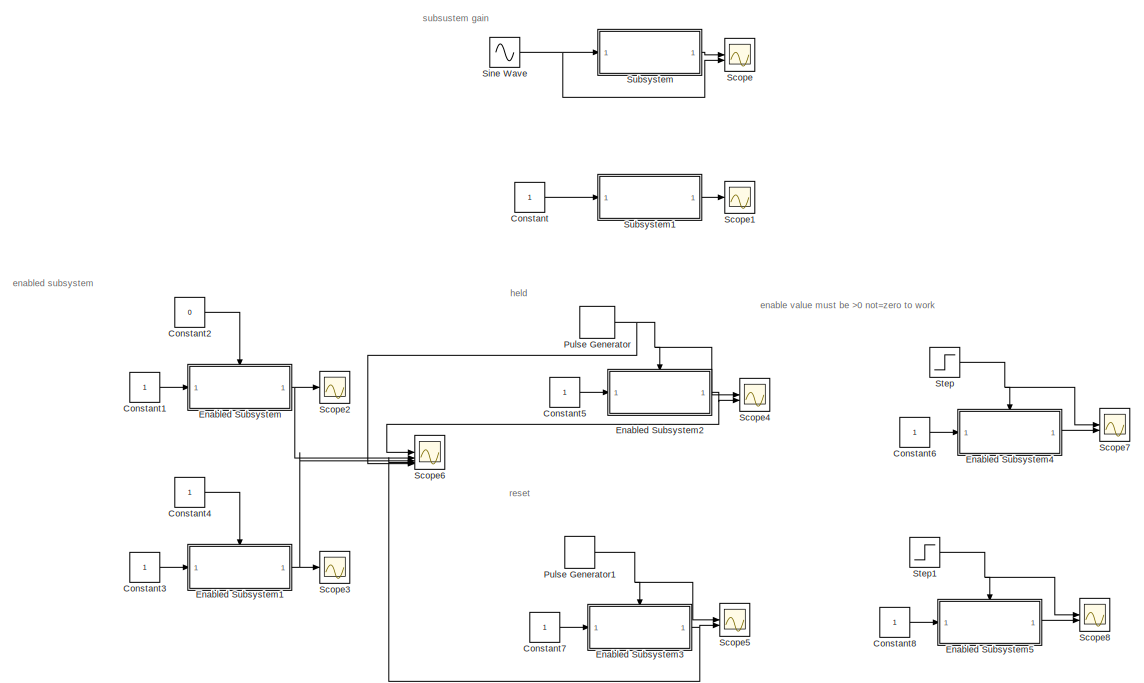
[diagram: root canvas - part 1/2, full width, top band]
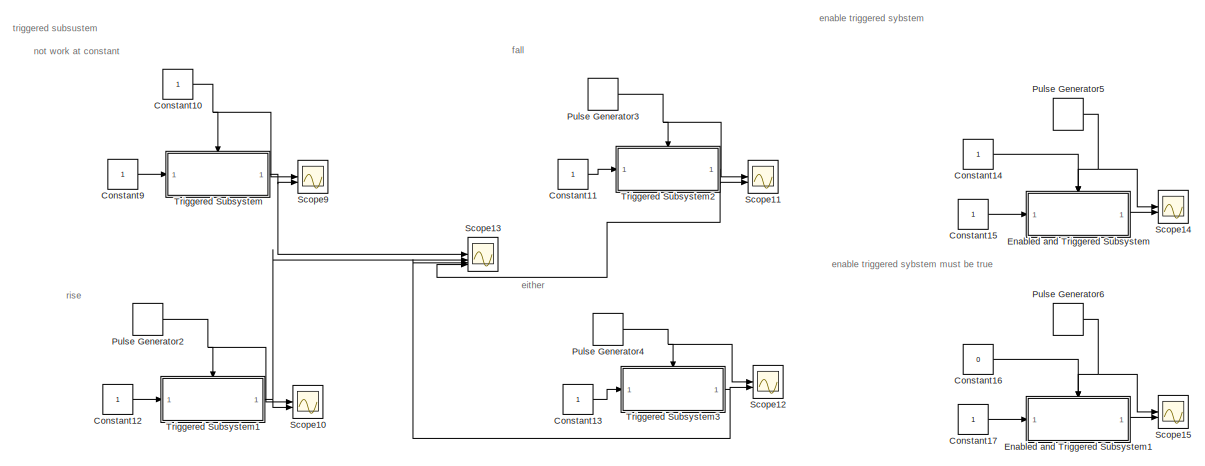
[diagram: root canvas - part 2/2, full width, bottom band]
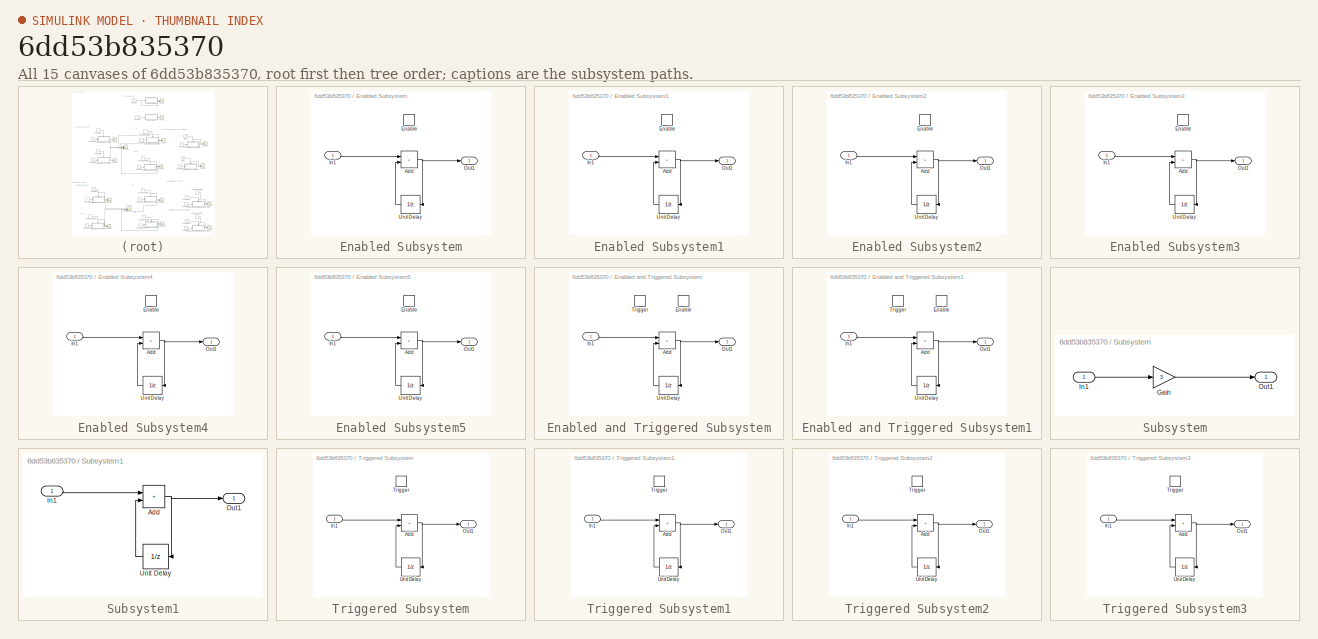
[diagram: thumbnail index - all 15 canvases of the model, root first then tree order]
MODEL slx_6dd53b835370
KIND model
CONFIG AbsTol = auto
CONFIG EnableMultiTasking = off
CONFIG FixedStep = 1e-3
CONFIG MaxStep = auto
CONFIG MinStep = auto
CONFIG RelTol = 1e-3
CONFIG SampleTimeConstraint = Unconstrained
CONFIG SolverName = FixedStepAuto
CONFIG StartTime = 0.0
CONFIG StopTime = 10.0
BLOCK [Constant] Constant
BLOCK [Constant] Constant1
BLOCK [Constant] Constant10
BLOCK [Constant] Constant11
BLOCK [Constant] Constant12
BLOCK [Constant] Constant13
BLOCK [Constant] Constant14
BLOCK [Constant] Constant15
BLOCK [Constant] Constant16
  Value = 0
BLOCK [Constant] Constant17
BLOCK [Constant] Constant2
  Value = 0
BLOCK [Constant] Constant3
BLOCK [Constant] Constant4
BLOCK [Constant] Constant5
BLOCK [Constant] Constant6
BLOCK [Constant] Constant7
BLOCK [Constant] Constant8
BLOCK [Constant] Constant9
BLOCK [SubSystem] Enabled Subsystem
  TreatAsAtomicUnit = on
BLOCK [Sum] Enabled Subsystem/Add
  IconShape = rectangular
BLOCK [EnablePort] Enabled Subsystem/Enable
BLOCK [Inport] Enabled Subsystem/In1
BLOCK [Outport] Enabled Subsystem/Out1
BLOCK [UnitDelay] Enabled Subsystem/Unit Delay
  HasFrameUpgradeWarning = on
  NameLocation = top
  SampleTime = -1
BLOCK [SubSystem] Enabled Subsystem1
  TreatAsAtomicUnit = on
BLOCK [Sum] Enabled Subsystem1/Add
  IconShape = rectangular
BLOCK [EnablePort] Enabled Subsystem1/Enable
BLOCK [Inport] Enabled Subsystem1/In1
BLOCK [Outport] Enabled Subsystem1/Out1
BLOCK [UnitDelay] Enabled Subsystem1/Unit Delay
  HasFrameUpgradeWarning = on
  NameLocation = top
  SampleTime = -1
BLOCK [SubSystem] Enabled Subsystem2
  TreatAsAtomicUnit = on
BLOCK [Sum] Enabled Subsystem2/Add
  IconShape = rectangular
BLOCK [EnablePort] Enabled Subsystem2/Enable
BLOCK [Inport] Enabled Subsystem2/In1
BLOCK [Outport] Enabled Subsystem2/Out1
BLOCK [UnitDelay] Enabled Subsystem2/Unit Delay
  HasFrameUpgradeWarning = on
  NameLocation = top
  SampleTime = -1
BLOCK [SubSystem] Enabled Subsystem3
  TreatAsAtomicUnit = on
BLOCK [Sum] Enabled Subsystem3/Add
  IconShape = rectangular
BLOCK [EnablePort] Enabled Subsystem3/Enable
  StatesWhenEnabling = reset
BLOCK [Inport] Enabled Subsystem3/In1
BLOCK [Outport] Enabled Subsystem3/Out1
BLOCK [UnitDelay] Enabled Subsystem3/Unit Delay
  HasFrameUpgradeWarning = on
  NameLocation = top
  SampleTime = -1
BLOCK [SubSystem] Enabled Subsystem4
  TreatAsAtomicUnit = on
BLOCK [Sum] Enabled Subsystem4/Add
  IconShape = rectangular
BLOCK [EnablePort] Enabled Subsystem4/Enable
BLOCK [Inport] Enabled Subsystem4/In1
BLOCK [Outport] Enabled Subsystem4/Out1
BLOCK [UnitDelay] Enabled Subsystem4/Unit Delay
  HasFrameUpgradeWarning = on
  NameLocation = top
  SampleTime = -1
BLOCK [SubSystem] Enabled Subsystem5
  TreatAsAtomicUnit = on
BLOCK [Sum] Enabled Subsystem5/Add
  IconShape = rectangular
BLOCK [EnablePort] Enabled Subsystem5/Enable
BLOCK [Inport] Enabled Subsystem5/In1
BLOCK [Outport] Enabled Subsystem5/Out1
BLOCK [UnitDelay] Enabled Subsystem5/Unit Delay
  HasFrameUpgradeWarning = on
  NameLocation = top
  SampleTime = -1
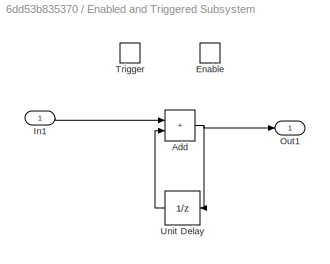
BLOCK [SubSystem] Enabled and Triggered Subsystem
  TreatAsAtomicUnit = on
BLOCK [Sum] Enabled and Triggered Subsystem/Add
  IconShape = rectangular
BLOCK [EnablePort] Enabled and Triggered Subsystem/Enable
BLOCK [Inport] Enabled and Triggered Subsystem/In1
BLOCK [Outport] Enabled and Triggered Subsystem/Out1
BLOCK [TriggerPort] Enabled and Triggered Subsystem/Trigger
  StatesWhenEnabling = held
  VariantControl = (inherit)
BLOCK [UnitDelay] Enabled and Triggered Subsystem/Unit Delay
  HasFrameUpgradeWarning = on
  NameLocation = top
  SampleTime = -1
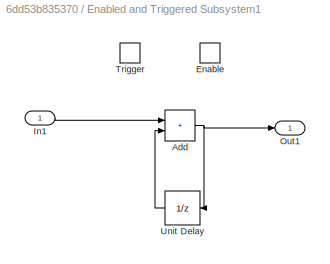
BLOCK [SubSystem] Enabled and Triggered Subsystem1
  TreatAsAtomicUnit = on
BLOCK [Sum] Enabled and Triggered Subsystem1/Add
  IconShape = rectangular
BLOCK [EnablePort] Enabled and Triggered Subsystem1/Enable
BLOCK [Inport] Enabled and Triggered Subsystem1/In1
BLOCK [Outport] Enabled and Triggered Subsystem1/Out1
BLOCK [TriggerPort] Enabled and Triggered Subsystem1/Trigger
  StatesWhenEnabling = held
  VariantControl = (inherit)
BLOCK [UnitDelay] Enabled and Triggered Subsystem1/Unit Delay
  HasFrameUpgradeWarning = on
  NameLocation = top
  SampleTime = -1
BLOCK [DiscretePulseGenerator] Pulse Generator
  PulseType = Time based
  PulseWidth = 50
BLOCK [DiscretePulseGenerator] Pulse Generator1
  PulseType = Time based
  PulseWidth = 50
BLOCK [DiscretePulseGenerator] Pulse Generator2
  PulseType = Time based
  PulseWidth = 5
BLOCK [DiscretePulseGenerator] Pulse Generator3
  PulseType = Time based
  PulseWidth = 5
BLOCK [DiscretePulseGenerator] Pulse Generator4
  PulseType = Time based
  PulseWidth = 5
BLOCK [DiscretePulseGenerator] Pulse Generator5
  PulseType = Time based
  PulseWidth = 5
BLOCK [DiscretePulseGenerator] Pulse Generator6
  PulseType = Time based
  PulseWidth = 5
BLOCK [Scope] Scope
  Floating = off
  NumInputPorts = 2
  ScopeSpecificationString = Simulink.scopes.TimeScopeBlockCfg('CurrentConfiguration', extmgr.ConfigurationSet(extmgr.Configuration('Core','General UI',true),extmgr.Configuration('Core','Source UI',true),extmgr.Configuration('Sources','WiredSimulink',true),extmgr.Configuration('Visuals','Time Domain',true,'SerializedDisplays',{struct('MinYLimReal','-3.75','MaxYLimReal','3.75','YLabelReal','','MinYLimMag','0.00000','MaxYLimMag...<+1323ch>
BLOCK [Scope] Scope1
  Floating = off
  NumInputPorts = 1
  ScopeSpecificationString = Simulink.scopes.TimeScopeBlockCfg('CurrentConfiguration', extmgr.ConfigurationSet(extmgr.Configuration('Core','General UI',true),extmgr.Configuration('Core','Source UI',true),extmgr.Configuration('Sources','WiredSimulink',true,'DataLoggingVariableName','ScopeData1'),extmgr.Configuration('Visuals','Time Domain',true,'SerializedDisplays',{struct('MinYLimReal','-1249.00000','MaxYLimReal','11251.00000...<+1395ch>
BLOCK [Scope] Scope10
  Floating = off
  NumInputPorts = 2
  ScopeSpecificationString = Simulink.scopes.TimeScopeBlockCfg('CurrentConfiguration', extmgr.ConfigurationSet(extmgr.Configuration('Core','General UI',true),extmgr.Configuration('Core','Source UI',true),extmgr.Configuration('Sources','WiredSimulink',true,'DataLoggingVariableName','ScopeData10'),extmgr.Configuration('Visuals','Time Domain',true,'SerializedDisplays',{struct('MinYLimReal','-0.125','MaxYLimReal','1.125','YLabelR...<+2021ch>
BLOCK [Scope] Scope11
  Floating = off
  NumInputPorts = 2
  ScopeSpecificationString = Simulink.scopes.TimeScopeBlockCfg('CurrentConfiguration', extmgr.ConfigurationSet(extmgr.Configuration('Core','General UI',true),extmgr.Configuration('Core','Source UI',true),extmgr.Configuration('Sources','WiredSimulink',true,'DataLoggingVariableName','ScopeData11'),extmgr.Configuration('Visuals','Time Domain',true,'SerializedDisplays',{struct('MinYLimReal','-0.125','MaxYLimReal','1.125','YLabelR...<+2021ch>
BLOCK [Scope] Scope12
  Floating = off
  NumInputPorts = 2
  ScopeSpecificationString = Simulink.scopes.TimeScopeBlockCfg('CurrentConfiguration', extmgr.ConfigurationSet(extmgr.Configuration('Core','General UI',true),extmgr.Configuration('Core','Source UI',true),extmgr.Configuration('Sources','WiredSimulink',true,'DataLoggingVariableName','ScopeData12'),extmgr.Configuration('Visuals','Time Domain',true,'SerializedDisplays',{struct('MinYLimReal','-0.125','MaxYLimReal','1.125','YLabelR...<+2020ch>
BLOCK [Scope] Scope13
  Floating = off
  NumInputPorts = 4
  ScopeSpecificationString = Simulink.scopes.TimeScopeBlockCfg('CurrentConfiguration', extmgr.ConfigurationSet(extmgr.Configuration('Core','General UI',true),extmgr.Configuration('Core','Source UI',true),extmgr.Configuration('Sources','WiredSimulink',true,'DataLoggingVariableName','ScopeData13'),extmgr.Configuration('Visuals','Time Domain',true,'SerializedDisplays',{struct('MinYLimReal','-1.00000','MaxYLimReal','1.00000','YLa...<+3457ch>
BLOCK [Scope] Scope14
  Floating = off
  NumInputPorts = 2
  ScopeSpecificationString = Simulink.scopes.TimeScopeBlockCfg('CurrentConfiguration', extmgr.ConfigurationSet(extmgr.Configuration('Core','General UI',true),extmgr.Configuration('Core','Source UI',true),extmgr.Configuration('Sources','WiredSimulink',true,'DataLoggingVariableName','ScopeData14'),extmgr.Configuration('Visuals','Time Domain',true,'SerializedDisplays',{struct('MinYLimReal','-0.125','MaxYLimReal','1.125','YLabelR...<+2032ch>
BLOCK [Scope] Scope15
  Floating = off
  NumInputPorts = 2
  ScopeSpecificationString = Simulink.scopes.TimeScopeBlockCfg('CurrentConfiguration', extmgr.ConfigurationSet(extmgr.Configuration('Core','General UI',true),extmgr.Configuration('Core','Source UI',true),extmgr.Configuration('Sources','WiredSimulink',true,'DataLoggingVariableName','ScopeData15'),extmgr.Configuration('Visuals','Time Domain',true,'SerializedDisplays',{struct('MinYLimReal','-0.125','MaxYLimReal','1.125','YLabelR...<+2037ch>
BLOCK [Scope] Scope2
  Floating = off
  NumInputPorts = 1
  ScopeSpecificationString = Simulink.scopes.TimeScopeBlockCfg('CurrentConfiguration', extmgr.ConfigurationSet(extmgr.Configuration('Core','General UI',true),extmgr.Configuration('Core','Source UI',true),extmgr.Configuration('Sources','WiredSimulink',true,'DataLoggingVariableName','ScopeData2'),extmgr.Configuration('Visuals','Time Domain',true,'SerializedDisplays',{struct('MinYLimReal','-1.00000','MaxYLimReal','1.00000','YLab...<+1376ch>
BLOCK [Scope] Scope3
  Floating = off
  NumInputPorts = 1
  ScopeSpecificationString = Simulink.scopes.TimeScopeBlockCfg('CurrentConfiguration', extmgr.ConfigurationSet(extmgr.Configuration('Core','General UI',true),extmgr.Configuration('Core','Source UI',true),extmgr.Configuration('Sources','WiredSimulink',true,'DataLoggingVariableName','ScopeData3'),extmgr.Configuration('Visuals','Time Domain',true,'SerializedDisplays',{struct('MinYLimReal','-1249.00000','MaxYLimReal','11251.00000...<+1403ch>
BLOCK [Scope] Scope4
  Floating = off
  NumInputPorts = 2
  ScopeSpecificationString = Simulink.scopes.TimeScopeBlockCfg('CurrentConfiguration', extmgr.ConfigurationSet(extmgr.Configuration('Core','General UI',true),extmgr.Configuration('Core','Source UI',true),extmgr.Configuration('Sources','WiredSimulink',true,'DataLoggingVariableName','ScopeData4'),extmgr.Configuration('Visuals','Time Domain',true,'SerializedDisplays',{struct('MinYLimReal','-2','MaxYLimReal','2','YLabelReal','','...<+1999ch>
BLOCK [Scope] Scope5
  Floating = off
  NumInputPorts = 2
  ScopeSpecificationString = Simulink.scopes.TimeScopeBlockCfg('CurrentConfiguration', extmgr.ConfigurationSet(extmgr.Configuration('Core','General UI',true),extmgr.Configuration('Core','Source UI',true),extmgr.Configuration('Sources','WiredSimulink',true,'DataLoggingVariableName','ScopeData5'),extmgr.Configuration('Visuals','Time Domain',true,'SerializedDisplays',{struct('MinYLimReal','-0.125','MaxYLimReal','1.125','YLabelRe...<+2062ch>
BLOCK [Scope] Scope6
  Floating = off
  NumInputPorts = 5
  ScopeSpecificationString = Simulink.scopes.TimeScopeBlockCfg('CurrentConfiguration', extmgr.ConfigurationSet(extmgr.Configuration('Core','General UI',true),extmgr.Configuration('Core','Source UI',true),extmgr.Configuration('Sources','WiredSimulink',true,'DataLoggingVariableName','ScopeData6'),extmgr.Configuration('Visuals','Time Domain',true,'SerializedDisplays',{struct('MinYLimReal','-624.00000','MaxYLimReal','5626.00000',...<+6248ch>
BLOCK [Scope] Scope7
  Floating = off
  NumInputPorts = 2
  ScopeSpecificationString = Simulink.scopes.TimeScopeBlockCfg('CurrentConfiguration', extmgr.ConfigurationSet(extmgr.Configuration('Core','General UI',true),extmgr.Configuration('Core','Source UI',true),extmgr.Configuration('Sources','WiredSimulink',true,'DataLoggingVariableName','ScopeData7'),extmgr.Configuration('Visuals','Time Domain',true,'SerializedDisplays',{struct('MinYLimReal','-1.125','MaxYLimReal','0.125','YLabelRe...<+1962ch>
BLOCK [Scope] Scope8
  Floating = off
  NumInputPorts = 2
  ScopeSpecificationString = Simulink.scopes.TimeScopeBlockCfg('CurrentConfiguration', extmgr.ConfigurationSet(extmgr.Configuration('Core','General UI',true),extmgr.Configuration('Core','Source UI',true),extmgr.Configuration('Sources','WiredSimulink',true,'DataLoggingVariableName','ScopeData8'),extmgr.Configuration('Visuals','Time Domain',true,'SerializedDisplays',{struct('MinYLimReal','-2','MaxYLimReal','2','YLabelReal','','...<+1961ch>
BLOCK [Scope] Scope9
  Floating = off
  NumInputPorts = 2
  ScopeSpecificationString = Simulink.scopes.TimeScopeBlockCfg('CurrentConfiguration', extmgr.ConfigurationSet(extmgr.Configuration('Core','General UI',true),extmgr.Configuration('Core','Source UI',true),extmgr.Configuration('Sources','WiredSimulink',true,'DataLoggingVariableName','ScopeData9'),extmgr.Configuration('Visuals','Time Domain',true,'SerializedDisplays',{struct('MinYLimReal','0.9','MaxYLimReal','1.1','YLabelReal','...<+2006ch>
BLOCK [Sin] Sine Wave
  SampleTime = 0
BLOCK [Step] Step
  After = 0
  Before = -1
  SampleTime = 0
BLOCK [Step] Step1
  Before = -1
  SampleTime = 0
BLOCK [SubSystem] Subsystem
BLOCK [Gain] Subsystem/Gain
  Gain = 3
BLOCK [Inport] Subsystem/In1
BLOCK [Outport] Subsystem/Out1
BLOCK [SubSystem] Subsystem1
BLOCK [Sum] Subsystem1/Add
  IconShape = rectangular
BLOCK [Inport] Subsystem1/In1
BLOCK [Outport] Subsystem1/Out1
BLOCK [UnitDelay] Subsystem1/Unit Delay
  HasFrameUpgradeWarning = on
  NameLocation = top
  SampleTime = -1
BLOCK [SubSystem] Triggered Subsystem
  TreatAsAtomicUnit = on
BLOCK [Sum] Triggered Subsystem/Add
  IconShape = rectangular
BLOCK [Inport] Triggered Subsystem/In1
BLOCK [Outport] Triggered Subsystem/Out1
BLOCK [TriggerPort] Triggered Subsystem/Trigger
  StatesWhenEnabling = held
  VariantControl = (inherit)
BLOCK [UnitDelay] Triggered Subsystem/Unit Delay
  HasFrameUpgradeWarning = on
  NameLocation = top
  SampleTime = -1
BLOCK [SubSystem] Triggered Subsystem1
  TreatAsAtomicUnit = on
BLOCK [Sum] Triggered Subsystem1/Add
  IconShape = rectangular
BLOCK [Inport] Triggered Subsystem1/In1
BLOCK [Outport] Triggered Subsystem1/Out1
BLOCK [TriggerPort] Triggered Subsystem1/Trigger
  StatesWhenEnabling = held
  VariantControl = (inherit)
BLOCK [UnitDelay] Triggered Subsystem1/Unit Delay
  HasFrameUpgradeWarning = on
  NameLocation = top
  SampleTime = -1
BLOCK [SubSystem] Triggered Subsystem2
  TreatAsAtomicUnit = on
BLOCK [Sum] Triggered Subsystem2/Add
  IconShape = rectangular
BLOCK [Inport] Triggered Subsystem2/In1
BLOCK [Outport] Triggered Subsystem2/Out1
BLOCK [TriggerPort] Triggered Subsystem2/Trigger
  StatesWhenEnabling = held
  TriggerType = falling
  VariantControl = (inherit)
BLOCK [UnitDelay] Triggered Subsystem2/Unit Delay
  HasFrameUpgradeWarning = on
  NameLocation = top
  SampleTime = -1
BLOCK [SubSystem] Triggered Subsystem3
  TreatAsAtomicUnit = on
BLOCK [Sum] Triggered Subsystem3/Add
  IconShape = rectangular
BLOCK [Inport] Triggered Subsystem3/In1
BLOCK [Outport] Triggered Subsystem3/Out1
BLOCK [TriggerPort] Triggered Subsystem3/Trigger
  StatesWhenEnabling = held
  TriggerType = either
  VariantControl = (inherit)
BLOCK [UnitDelay] Triggered Subsystem3/Unit Delay
  HasFrameUpgradeWarning = on
  NameLocation = top
  SampleTime = -1
ANNOTATION (root): either
ANNOTATION (root): enable triggered sybstem
ANNOTATION (root): enable triggered sybstem must be true
ANNOTATION (root): enable value must be >0 not=zero to work
ANNOTATION (root): enabled subsystem
ANNOTATION (root): fall
ANNOTATION (root): held
ANNOTATION (root): not work at constant
ANNOTATION (root): reset
ANNOTATION (root): rise
ANNOTATION (root): subsustem gain
ANNOTATION (root): triggered subsustem
NET Constant10:1 -> Scope9:1, Triggered Subsystem:trigger
LINE Constant11:1 -> Triggered Subsystem2:1
LINE Constant12:1 -> Triggered Subsystem1:1
LINE Constant13:1 -> Triggered Subsystem3:1
LINE Constant14:1 -> Enabled and Triggered Subsystem:enable
LINE Constant15:1 -> Enabled and Triggered Subsystem:1
LINE Constant16:1 -> Enabled and Triggered Subsystem1:enable
LINE Constant17:1 -> Enabled and Triggered Subsystem1:1
LINE Constant1:1 -> Enabled Subsystem:1
LINE Constant2:1 -> Enabled Subsystem:enable
LINE Constant3:1 -> Enabled Subsystem1:1
LINE Constant4:1 -> Enabled Subsystem1:enable
LINE Constant5:1 -> Enabled Subsystem2:1
LINE Constant6:1 -> Enabled Subsystem4:1
LINE Constant7:1 -> Enabled Subsystem3:1
LINE Constant8:1 -> Enabled Subsystem5:1
LINE Constant9:1 -> Triggered Subsystem:1
LINE Constant:1 -> Subsystem1:1
NET Enabled Subsystem/Add:1 -> Enabled Subsystem/Out1:1, Enabled Subsystem/Unit Delay:1
LINE Enabled Subsystem/In1:1 -> Enabled Subsystem/Add:1
LINE Enabled Subsystem/Unit Delay:1 -> Enabled Subsystem/Add:2
NET Enabled Subsystem1/Add:1 -> Enabled Subsystem1/Out1:1, Enabled Subsystem1/Unit Delay:1
LINE Enabled Subsystem1/In1:1 -> Enabled Subsystem1/Add:1
LINE Enabled Subsystem1/Unit Delay:1 -> Enabled Subsystem1/Add:2
NET Enabled Subsystem1:1 -> Scope3:1, Scope6:3
NET Enabled Subsystem2/Add:1 -> Enabled Subsystem2/Out1:1, Enabled Subsystem2/Unit Delay:1
LINE Enabled Subsystem2/In1:1 -> Enabled Subsystem2/Add:1
LINE Enabled Subsystem2/Unit Delay:1 -> Enabled Subsystem2/Add:2
NET Enabled Subsystem2:1 -> Scope4:2, Scope6:1
NET Enabled Subsystem3/Add:1 -> Enabled Subsystem3/Out1:1, Enabled Subsystem3/Unit Delay:1
LINE Enabled Subsystem3/In1:1 -> Enabled Subsystem3/Add:1
LINE Enabled Subsystem3/Unit Delay:1 -> Enabled Subsystem3/Add:2
NET Enabled Subsystem3:1 -> Scope5:2, Scope6:4
NET Enabled Subsystem4/Add:1 -> Enabled Subsystem4/Out1:1, Enabled Subsystem4/Unit Delay:1
LINE Enabled Subsystem4/In1:1 -> Enabled Subsystem4/Add:1
LINE Enabled Subsystem4/Unit Delay:1 -> Enabled Subsystem4/Add:2
LINE Enabled Subsystem4:1 -> Scope7:2
NET Enabled Subsystem5/Add:1 -> Enabled Subsystem5/Out1:1, Enabled Subsystem5/Unit Delay:1
LINE Enabled Subsystem5/In1:1 -> Enabled Subsystem5/Add:1
LINE Enabled Subsystem5/Unit Delay:1 -> Enabled Subsystem5/Add:2
LINE Enabled Subsystem5:1 -> Scope8:2
NET Enabled Subsystem:1 -> Scope2:1, Scope6:2
NET Enabled and Triggered Subsystem/Add:1 -> Enabled and Triggered Subsystem/Out1:1, Enabled and Triggered Subsystem/Unit Delay:1
LINE Enabled and Triggered Subsystem/In1:1 -> Enabled and Triggered Subsystem/Add:1
LINE Enabled and Triggered Subsystem/Unit Delay:1 -> Enabled and Triggered Subsystem/Add:2
NET Enabled and Triggered Subsystem1/Add:1 -> Enabled and Triggered Subsystem1/Out1:1, Enabled and Triggered Subsystem1/Unit Delay:1
LINE Enabled and Triggered Subsystem1/In1:1 -> Enabled and Triggered Subsystem1/Add:1
LINE Enabled and Triggered Subsystem1/Unit Delay:1 -> Enabled and Triggered Subsystem1/Add:2
LINE Enabled and Triggered Subsystem1:1 -> Scope15:2
LINE Enabled and Triggered Subsystem:1 -> Scope14:2
NET Pulse Generator1:1 -> Enabled Subsystem3:enable, Scope5:1
NET Pulse Generator2:1 -> Scope10:1, Triggered Subsystem1:trigger
NET Pulse Generator3:1 -> Scope11:1, Triggered Subsystem2:trigger
NET Pulse Generator4:1 -> Scope12:1, Triggered Subsystem3:trigger
NET Pulse Generator5:1 -> Enabled and Triggered Subsystem:trigger, Scope14:1
NET Pulse Generator6:1 -> Enabled and Triggered Subsystem1:trigger, Scope15:1
NET Pulse Generator:1 -> Enabled Subsystem2:enable, Scope4:1, Scope6:5
NET Sine Wave:1 -> Scope:2, Subsystem:1
NET Step1:1 -> Enabled Subsystem5:enable, Scope8:1
NET Step:1 -> Enabled Subsystem4:enable, Scope7:1
LINE Subsystem/Gain:1 -> Subsystem/Out1:1
LINE Subsystem/In1:1 -> Subsystem/Gain:1
NET Subsystem1/Add:1 -> Subsystem1/Out1:1, Subsystem1/Unit Delay:1
LINE Subsystem1/In1:1 -> Subsystem1/Add:1
LINE Subsystem1/Unit Delay:1 -> Subsystem1/Add:2
LINE Subsystem1:1 -> Scope1:1
LINE Subsystem:1 -> Scope:1
NET Triggered Subsystem/Add:1 -> Triggered Subsystem/Out1:1, Triggered Subsystem/Unit Delay:1
LINE Triggered Subsystem/In1:1 -> Triggered Subsystem/Add:1
LINE Triggered Subsystem/Unit Delay:1 -> Triggered Subsystem/Add:2
NET Triggered Subsystem1/Add:1 -> Triggered Subsystem1/Out1:1, Triggered Subsystem1/Unit Delay:1
LINE Triggered Subsystem1/In1:1 -> Triggered Subsystem1/Add:1
LINE Triggered Subsystem1/Unit Delay:1 -> Triggered Subsystem1/Add:2
NET Triggered Subsystem1:1 -> Scope10:2, Scope13:2
NET Triggered Subsystem2/Add:1 -> Triggered Subsystem2/Out1:1, Triggered Subsystem2/Unit Delay:1
LINE Triggered Subsystem2/In1:1 -> Triggered Subsystem2/Add:1
LINE Triggered Subsystem2/Unit Delay:1 -> Triggered Subsystem2/Add:2
NET Triggered Subsystem2:1 -> Scope11:2, Scope13:4
NET Triggered Subsystem3/Add:1 -> Triggered Subsystem3/Out1:1, Triggered Subsystem3/Unit Delay:1
LINE Triggered Subsystem3/In1:1 -> Triggered Subsystem3/Add:1
LINE Triggered Subsystem3/Unit Delay:1 -> Triggered Subsystem3/Add:2
NET Triggered Subsystem3:1 -> Scope12:2, Scope13:3
NET Triggered Subsystem:1 -> Scope13:1, Scope9:2
note: NET lines group one-source signal fan-out (src -> all destinations, sorted); 1:1 wires keep LINE
